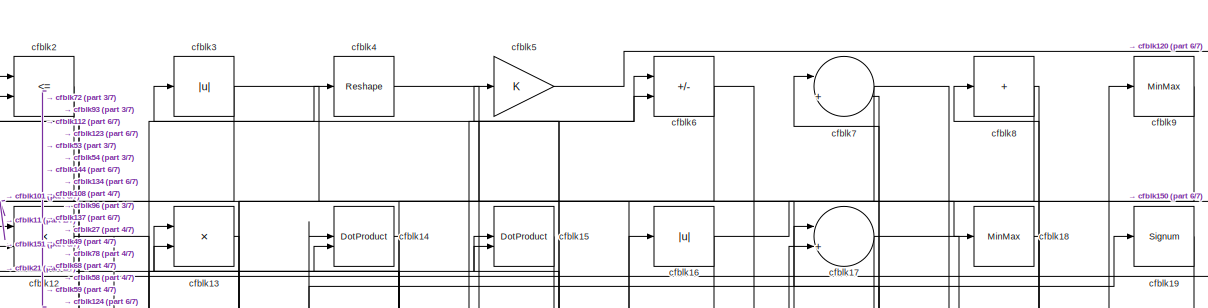
[diagram: root canvas - part 1/7, full width, top band]
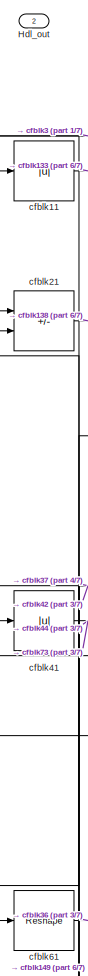
[diagram: root canvas - part 2/7, top left region]
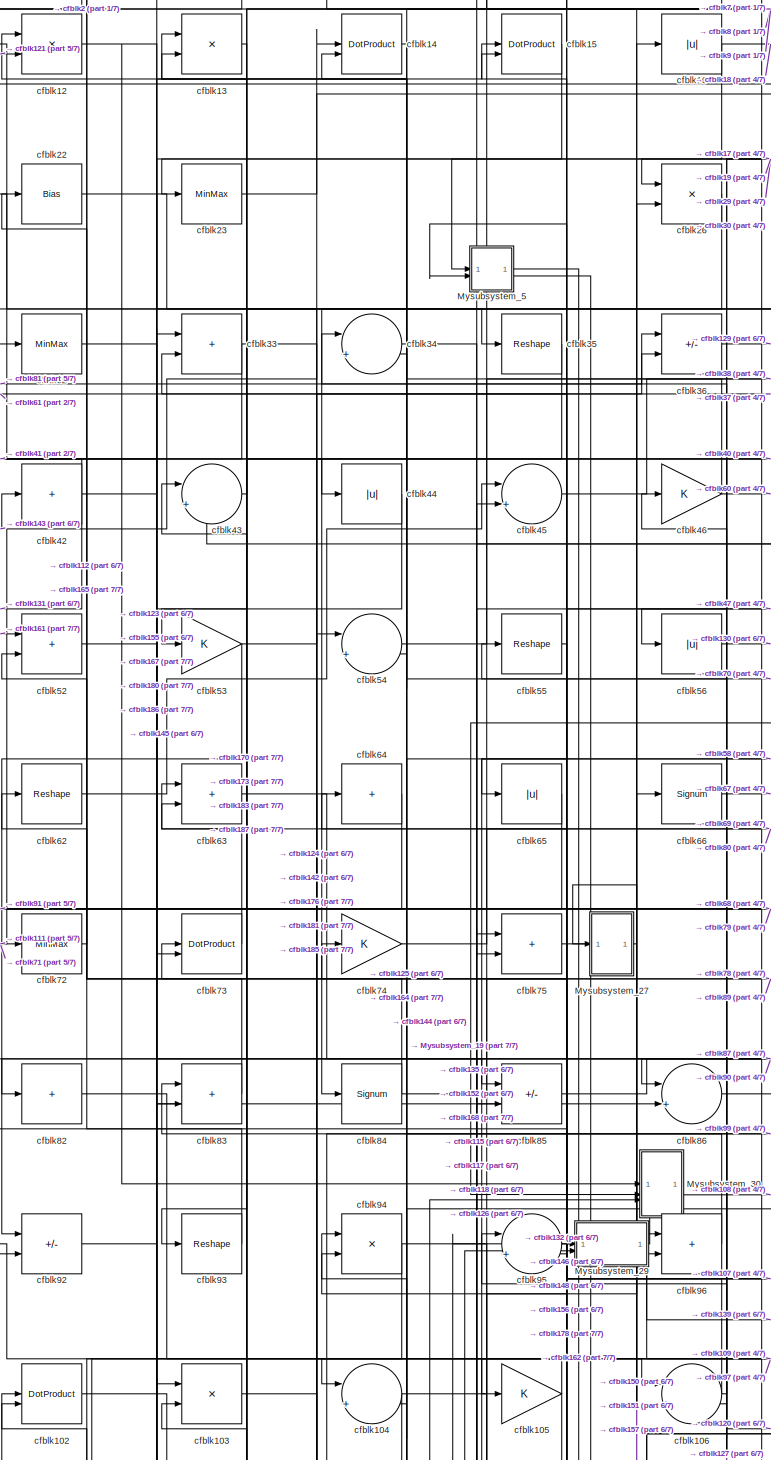
[diagram: root canvas - part 3/7, top center region]
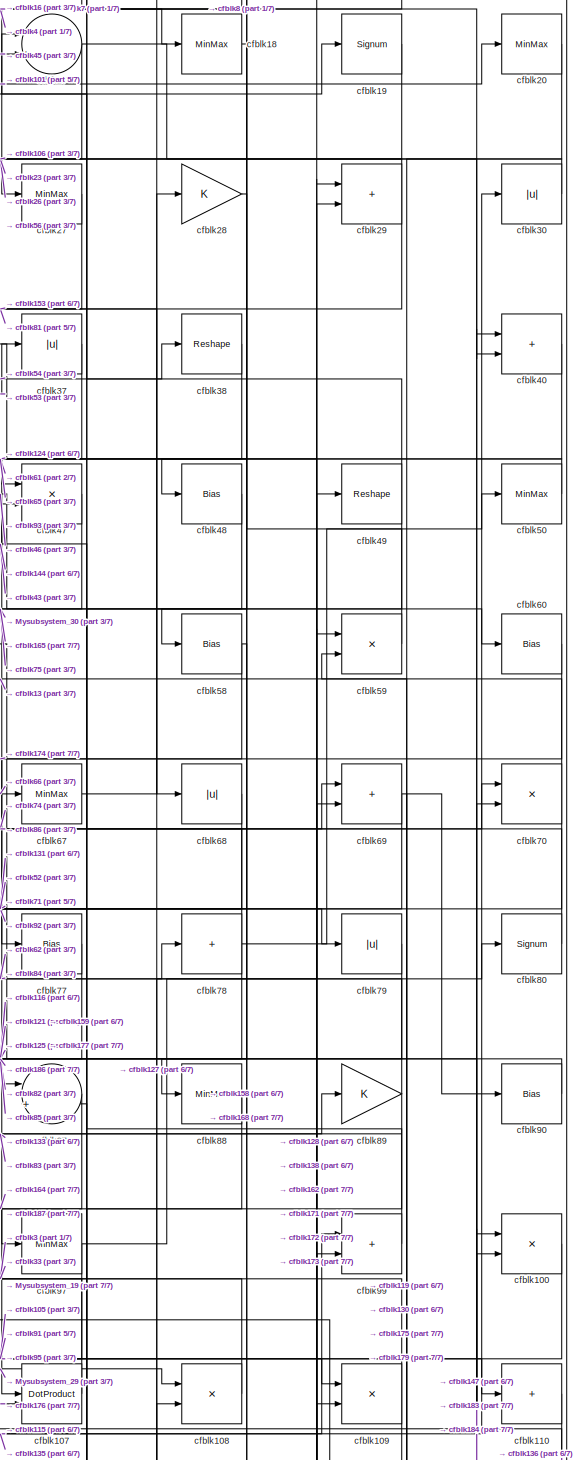
[diagram: root canvas - part 4/7, top right region]
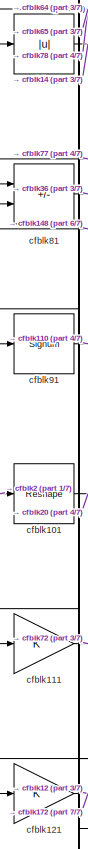
[diagram: root canvas - part 5/7, middle left region]
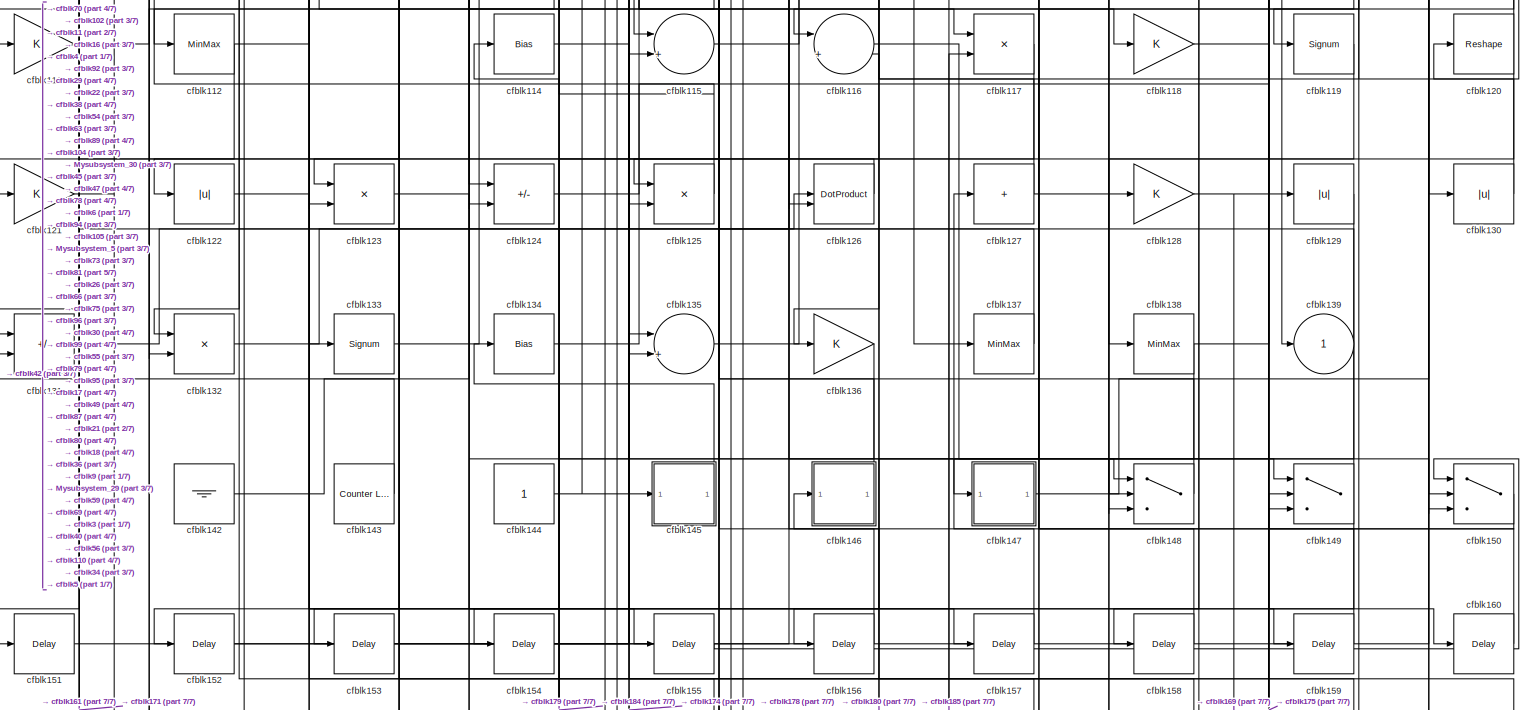
[diagram: root canvas - part 6/7, full width, bottom band]
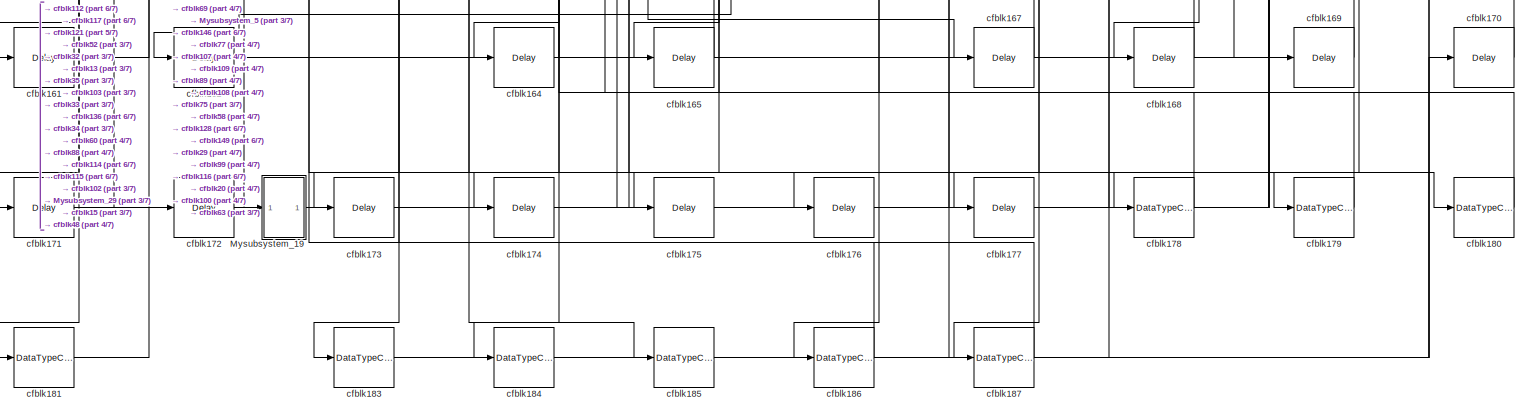
[diagram: root canvas - part 7/7, full width, bottom band]
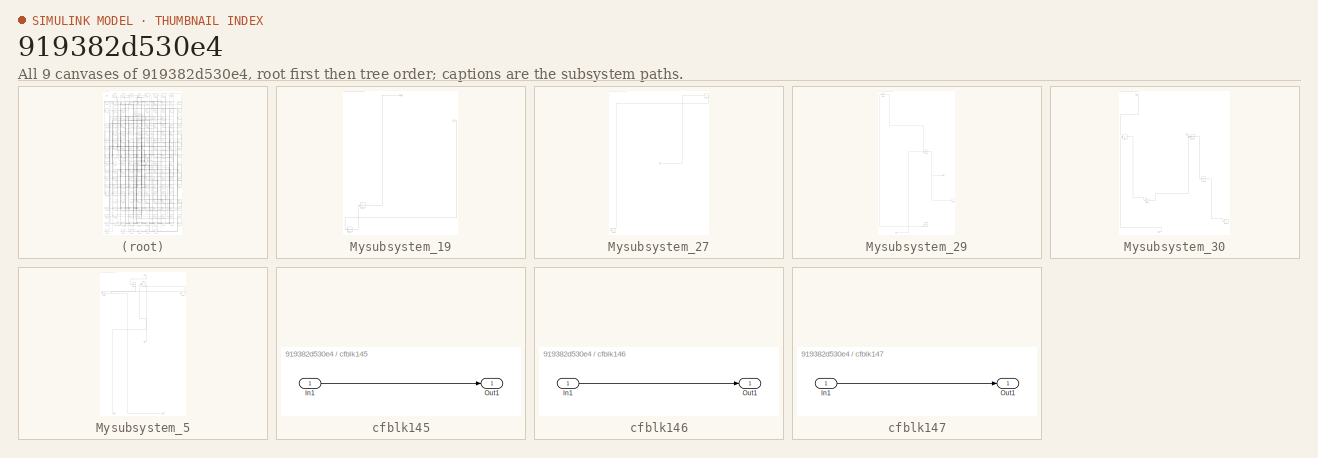
[diagram: thumbnail index - all 9 canvases of the model, root first then tree order]
MODEL slx_919382d530e4
KIND model
CONFIG AbsTol = auto
CONFIG EnableMultiTasking = off
CONFIG FixedStep = auto
CONFIG MaxStep = auto
CONFIG MinStep = auto
CONFIG RelTol = 1e-3
CONFIG SampleTimeConstraint = Unconstrained
CONFIG SolverName = VariableStepAuto
CONFIG StartTime = 0.0
CONFIG StopTime = 10.0
BLOCK [Outport] Hdl_out
  OutDataTypeStr = uint8
  Port = 2
BLOCK [SubSystem] Mysubsystem_19
  RTWFcnName = Mysubsystem_19
  RTWFcnNameOpts = User specified
  RTWFileNameOpts = Use function name
  RTWSystemCode = Reusable function
  TreatAsAtomicUnit = on
BLOCK [Inport] Mysubsystem_19/In1
BLOCK [Outport] Mysubsystem_19/Out1
BLOCK [Delay] Mysubsystem_19/cfblk163
  InputPortMap = u0
  SampleTime = 1
BLOCK [DataTypeConversion] Mysubsystem_19/cfblk182
  OutDataTypeStr = uint8
  RndMeth = Floor
  SaturateOnIntegerOverflow = off
BLOCK [SubSystem] Mysubsystem_27
  RTWFcnName = Mysubsystem_27
  RTWFcnNameOpts = User specified
  RTWFileNameOpts = Use function name
  RTWSystemCode = Reusable function
  TreatAsAtomicUnit = on
BLOCK [Inport] Mysubsystem_27/In1
BLOCK [Sum] Mysubsystem_27/cfblk10
  IconShape = rectangular
  Inputs = +
BLOCK [Scope] Mysubsystem_27/cfblk141
  Floating = off
  NumInputPorts = 1
  ScopeSpecificationString = Simulink.scopes.TimeScopeBlockCfg('CurrentConfiguration', extmgr.ConfigurationSet(extmgr.Configuration('Core','General UI',true),extmgr.Configuration('Core','Source UI',true),extmgr.Configuration('Sources','WiredSimulink',true,'DataLoggingVariableName','ScopeData2','DataLoggingSaveFormat','Array','DataLoggingLimitDataPoints',true,'DataLoggingDecimation','1'),extmgr.Configuration('Visuals','Time Do...<+868ch>
BLOCK [SubSystem] Mysubsystem_29
  RTWFcnName = Mysubsystem_29
  RTWFcnNameOpts = User specified
  RTWFileNameOpts = Use function name
  RTWSystemCode = Reusable function
  TreatAsAtomicUnit = on
BLOCK [Inport] Mysubsystem_29/In1
BLOCK [Inport] Mysubsystem_29/In2
  Port = 2
BLOCK [Outport] Mysubsystem_29/Out1
BLOCK [Reference] Mysubsystem_29/cfblk1  REF=simulink/Logic and Bit
Operations/Bit Clear
  LibrarySourceBlock = hdlsllib/Logic and Bit\nOperations/Bit Clear
  SourceBlock = simulink/Logic and Bit\nOperations/Bit Clear
  SourceType = Bit Clear
BLOCK [Outport] Mysubsystem_29/cfblk139
  Port = 2
  VectorParamsAs1DForOutWhenUnconnected = off
BLOCK [Delay] Mysubsystem_29/cfblk166
  InputPortMap = u0
  SampleTime = 1
BLOCK [DotProduct] Mysubsystem_29/cfblk76
  OutDataTypeStr = Inherit: Inherit via internal rule
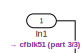
[diagram: Mysubsystem_30 - part 1/3, top left region]
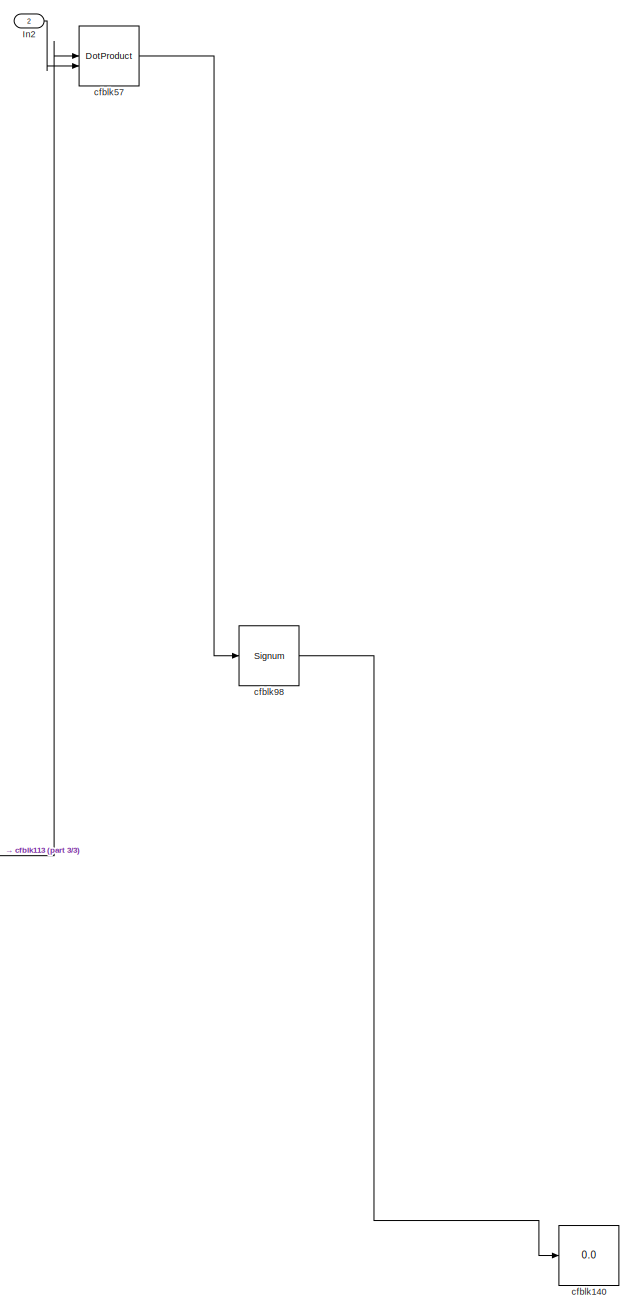
[diagram: Mysubsystem_30 - part 2/3, middle right region]
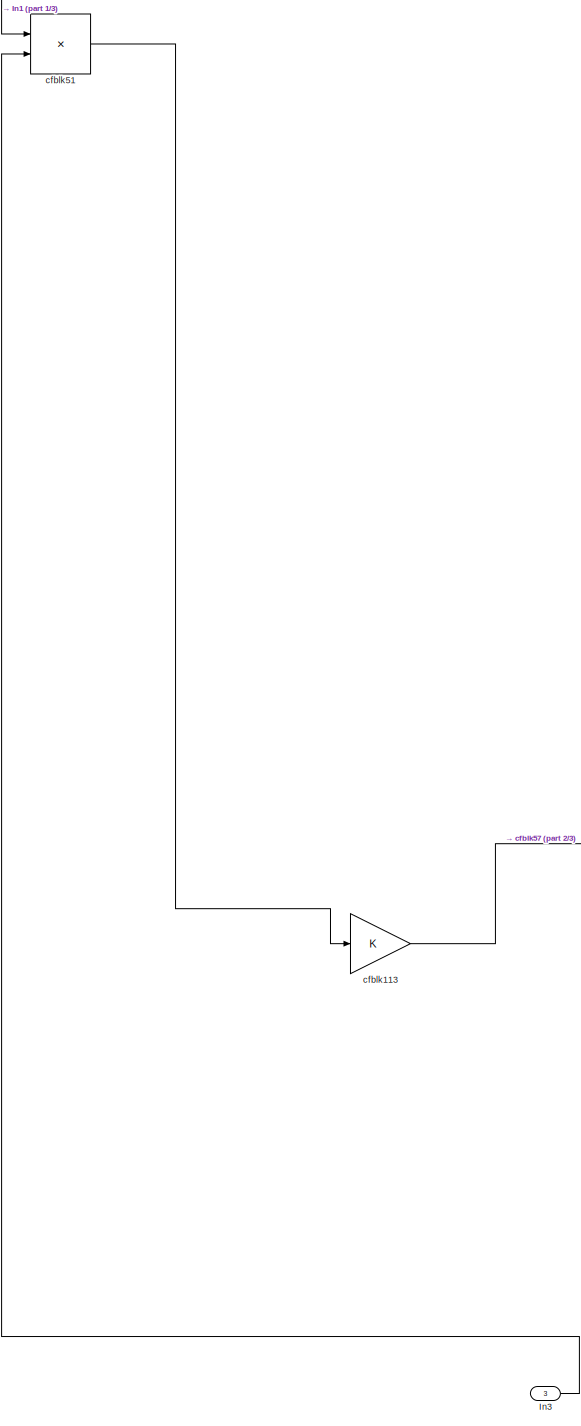
[diagram: Mysubsystem_30 - part 3/3, middle left region]
BLOCK [SubSystem] Mysubsystem_30
  RTWFcnName = Mysubsystem_30
  RTWFcnNameOpts = User specified
  RTWFileNameOpts = Use function name
  RTWSystemCode = Reusable function
  TreatAsAtomicUnit = on
BLOCK [Inport] Mysubsystem_30/In1
BLOCK [Inport] Mysubsystem_30/In2
  Port = 2
BLOCK [Inport] Mysubsystem_30/In3
  Port = 3
BLOCK [Gain] Mysubsystem_30/cfblk113
BLOCK [Display] Mysubsystem_30/cfblk140
  Decimation = 1
BLOCK [Product] Mysubsystem_30/cfblk51
  Inputs = */
  RndMeth = Zero
  SaturateOnIntegerOverflow = on
BLOCK [DotProduct] Mysubsystem_30/cfblk57
  OutDataTypeStr = Inherit: Inherit via internal rule
BLOCK [Signum] Mysubsystem_30/cfblk98
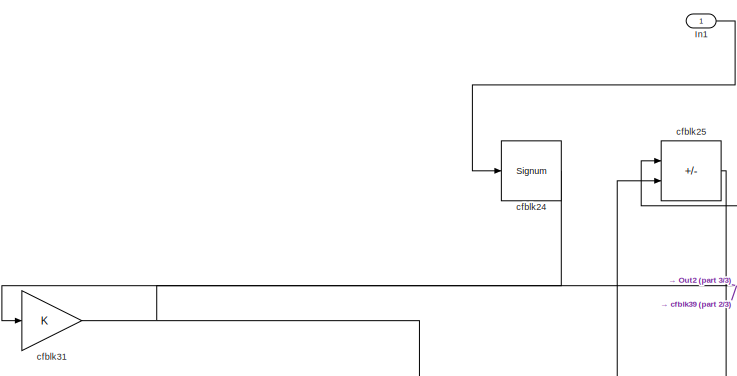
[diagram: Mysubsystem_5 - part 1/3, top left region]
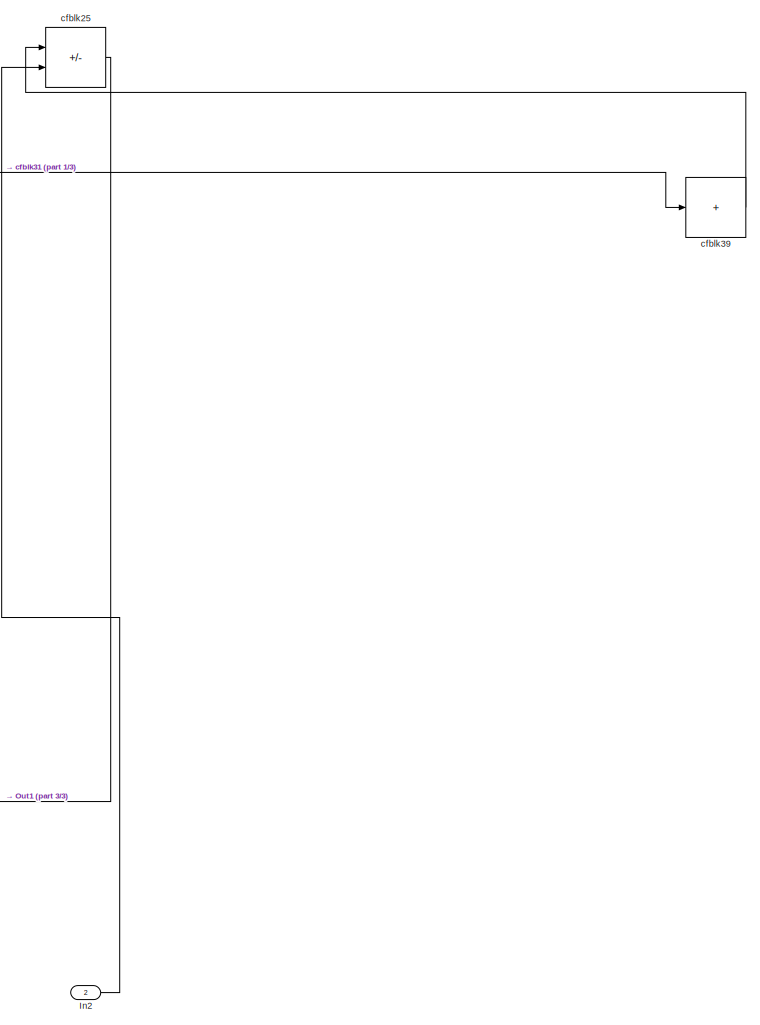
[diagram: Mysubsystem_5 - part 2/3, top right region]
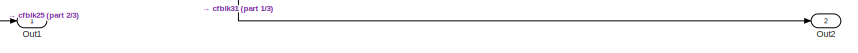
[diagram: Mysubsystem_5 - part 3/3, bottom center region]
BLOCK [SubSystem] Mysubsystem_5
  RTWFcnName = Mysubsystem_5
  RTWFcnNameOpts = User specified
  RTWFileNameOpts = Use function name
  RTWSystemCode = Reusable function
  TreatAsAtomicUnit = on
BLOCK [Inport] Mysubsystem_5/In1
BLOCK [Inport] Mysubsystem_5/In2
  Port = 2
BLOCK [Outport] Mysubsystem_5/Out1
BLOCK [Outport] Mysubsystem_5/Out2
  Port = 2
BLOCK [Signum] Mysubsystem_5/cfblk24
BLOCK [Sum] Mysubsystem_5/cfblk25
  IconShape = rectangular
  Inputs = +-
BLOCK [Gain] Mysubsystem_5/cfblk31
BLOCK [Sum] Mysubsystem_5/cfblk39
  IconShape = rectangular
  Inputs = +
BLOCK [Product] cfblk100
  Inputs = */
  OutDataTypeStr = uint8
  RndMeth = Zero
  SaturateOnIntegerOverflow = on
BLOCK [Reshape] cfblk101
BLOCK [DotProduct] cfblk102
  OutDataTypeStr = uint8
BLOCK [Product] cfblk103
  Inputs = */
  OutDataTypeStr = uint8
  RndMeth = Zero
  SaturateOnIntegerOverflow = on
BLOCK [Sum] cfblk104
  Inputs = |++
  OutDataTypeStr = uint8
BLOCK [Gain] cfblk105
  OutDataTypeStr = uint8
BLOCK [Sum] cfblk106
  Inputs = |++
  OutDataTypeStr = uint8
BLOCK [DotProduct] cfblk107
  OutDataTypeStr = uint8
BLOCK [Product] cfblk108
  Inputs = */
  OutDataTypeStr = uint8
  RndMeth = Zero
  SaturateOnIntegerOverflow = on
BLOCK [Product] cfblk109
  Inputs = */
  OutDataTypeStr = uint8
  RndMeth = Zero
  SaturateOnIntegerOverflow = on
BLOCK [Abs] cfblk11
  OutDataTypeStr = uint8
  SaturateOnIntegerOverflow = off
BLOCK [Sum] cfblk110
  IconShape = rectangular
  Inputs = +
  OutDataTypeStr = uint8
BLOCK [Gain] cfblk111
  OutDataTypeStr = uint8
BLOCK [MinMax] cfblk112
  OutDataTypeStr = uint8
BLOCK [Bias] cfblk114
  Bias = 0.0
  SaturateOnIntegerOverflow = off
BLOCK [Sum] cfblk115
  Inputs = |++
  OutDataTypeStr = uint8
BLOCK [Sum] cfblk116
  Inputs = |++
  OutDataTypeStr = uint8
BLOCK [Product] cfblk117
  Inputs = */
  OutDataTypeStr = uint8
  RndMeth = Zero
  SaturateOnIntegerOverflow = on
BLOCK [Gain] cfblk118
  OutDataTypeStr = uint8
BLOCK [Signum] cfblk119
BLOCK [Product] cfblk12
  Inputs = */
  OutDataTypeStr = uint8
  RndMeth = Zero
  SaturateOnIntegerOverflow = on
BLOCK [Reshape] cfblk120
BLOCK [Gain] cfblk121
  OutDataTypeStr = uint8
BLOCK [Abs] cfblk122
  OutDataTypeStr = uint8
  SaturateOnIntegerOverflow = off
BLOCK [Product] cfblk123
  Inputs = */
  OutDataTypeStr = uint8
  RndMeth = Zero
  SaturateOnIntegerOverflow = on
BLOCK [Sum] cfblk124
  IconShape = rectangular
  Inputs = +-
  OutDataTypeStr = uint8
BLOCK [Product] cfblk125
  Inputs = */
  OutDataTypeStr = uint8
  RndMeth = Zero
  SaturateOnIntegerOverflow = on
BLOCK [DotProduct] cfblk126
  OutDataTypeStr = uint8
BLOCK [Sum] cfblk127
  IconShape = rectangular
  Inputs = +
  OutDataTypeStr = uint8
BLOCK [Gain] cfblk128
  OutDataTypeStr = uint8
BLOCK [Abs] cfblk129
  OutDataTypeStr = uint8
  SaturateOnIntegerOverflow = off
BLOCK [Product] cfblk13
  Inputs = */
  OutDataTypeStr = uint8
  RndMeth = Zero
  SaturateOnIntegerOverflow = on
BLOCK [Abs] cfblk130
  OutDataTypeStr = uint8
  SaturateOnIntegerOverflow = off
BLOCK [Sum] cfblk131
  IconShape = rectangular
  Inputs = +-
  OutDataTypeStr = uint8
BLOCK [Product] cfblk132
  Inputs = */
  OutDataTypeStr = uint8
  RndMeth = Zero
  SaturateOnIntegerOverflow = on
BLOCK [Signum] cfblk133
BLOCK [Bias] cfblk134
  Bias = 0.0
  SaturateOnIntegerOverflow = off
BLOCK [Sum] cfblk135
  Inputs = |++
  OutDataTypeStr = uint8
BLOCK [Gain] cfblk136
  OutDataTypeStr = uint8
BLOCK [MinMax] cfblk137
  OutDataTypeStr = uint8
BLOCK [MinMax] cfblk138
  OutDataTypeStr = uint8
BLOCK [Outport] cfblk139
  OutDataTypeStr = uint8
  VectorParamsAs1DForOutWhenUnconnected = off
BLOCK [DotProduct] cfblk14
  OutDataTypeStr = uint8
BLOCK [Ground] cfblk142
BLOCK [Reference] cfblk143  REF=hdlsllib/Sources/Counter
Limited
  SourceBlock = hdlsllib/Sources/Counter\nLimited
  SourceType = Counter Limited
BLOCK [Constant] cfblk144
  OutDataTypeStr = uint8
  SampleTime = -1
BLOCK [SubSystem] cfblk145
  LibrarySourceBlock = hdlsllib/Ports &\nSubsystems/Subsystem
BLOCK [Inport] cfblk145/In1
BLOCK [Outport] cfblk145/Out1
BLOCK [SubSystem] cfblk146
  LibrarySourceBlock = hdlsllib/Ports &\nSubsystems/Subsystem
BLOCK [Inport] cfblk146/In1
BLOCK [Outport] cfblk146/Out1
BLOCK [SubSystem] cfblk147
  LibrarySourceBlock = hdlsllib/Ports &\nSubsystems/Subsystem
BLOCK [Inport] cfblk147/In1
BLOCK [Outport] cfblk147/Out1
BLOCK [Switch] cfblk148
  InputSameDT = off
  OutDataTypeStr = uint8
  SaturateOnIntegerOverflow = off
BLOCK [Switch] cfblk149
  InputSameDT = off
  OutDataTypeStr = uint8
  SaturateOnIntegerOverflow = off
BLOCK [DotProduct] cfblk15
  OutDataTypeStr = uint8
BLOCK [Switch] cfblk150
  InputSameDT = off
  OutDataTypeStr = uint8
  SaturateOnIntegerOverflow = off
BLOCK [Delay] cfblk151
  InputPortMap = u0
  SampleTime = 1
BLOCK [Delay] cfblk152
  InputPortMap = u0
  SampleTime = 1
BLOCK [Delay] cfblk153
  InputPortMap = u0
  SampleTime = 1
BLOCK [Delay] cfblk154
  InputPortMap = u0
  SampleTime = 1
BLOCK [Delay] cfblk155
  InputPortMap = u0
  SampleTime = 1
BLOCK [Delay] cfblk156
  InputPortMap = u0
  SampleTime = 1
BLOCK [Delay] cfblk157
  InputPortMap = u0
  SampleTime = 1
BLOCK [Delay] cfblk158
  InputPortMap = u0
  SampleTime = 1
BLOCK [Delay] cfblk159
  InputPortMap = u0
  SampleTime = 1
BLOCK [Abs] cfblk16
  OutDataTypeStr = uint8
  SaturateOnIntegerOverflow = off
BLOCK [Delay] cfblk160
  InputPortMap = u0
  SampleTime = 1
BLOCK [Delay] cfblk161
  InputPortMap = u0
  SampleTime = 1
BLOCK [Delay] cfblk162
  InputPortMap = u0
  SampleTime = 1
BLOCK [Delay] cfblk164
  InputPortMap = u0
  SampleTime = 1
BLOCK [Delay] cfblk165
  InputPortMap = u0
  SampleTime = 1
BLOCK [Delay] cfblk167
  InputPortMap = u0
  SampleTime = 1
BLOCK [Delay] cfblk168
  InputPortMap = u0
  SampleTime = 1
BLOCK [Delay] cfblk169
  InputPortMap = u0
  SampleTime = 1
BLOCK [Sum] cfblk17
  Inputs = |++
  OutDataTypeStr = uint8
BLOCK [Delay] cfblk170
  InputPortMap = u0
  SampleTime = 1
BLOCK [Delay] cfblk171
  InputPortMap = u0
  SampleTime = 1
BLOCK [Delay] cfblk172
  InputPortMap = u0
  SampleTime = 1
BLOCK [Delay] cfblk173
  InputPortMap = u0
  SampleTime = 1
BLOCK [Delay] cfblk174
  InputPortMap = u0
  SampleTime = 1
BLOCK [Delay] cfblk175
  InputPortMap = u0
  SampleTime = 1
BLOCK [Delay] cfblk176
  InputPortMap = u0
  SampleTime = 1
BLOCK [Delay] cfblk177
  InputPortMap = u0
  SampleTime = 1
BLOCK [DataTypeConversion] cfblk178
  OutDataTypeStr = uint8
  RndMeth = Floor
  SaturateOnIntegerOverflow = off
BLOCK [DataTypeConversion] cfblk179
  OutDataTypeStr = uint8
  RndMeth = Floor
  SaturateOnIntegerOverflow = off
BLOCK [MinMax] cfblk18
  OutDataTypeStr = uint8
BLOCK [DataTypeConversion] cfblk180
  OutDataTypeStr = uint8
  RndMeth = Floor
  SaturateOnIntegerOverflow = off
BLOCK [DataTypeConversion] cfblk181
  OutDataTypeStr = uint8
  RndMeth = Floor
  SaturateOnIntegerOverflow = off
BLOCK [DataTypeConversion] cfblk183
  OutDataTypeStr = uint8
  RndMeth = Floor
  SaturateOnIntegerOverflow = off
BLOCK [DataTypeConversion] cfblk184
  OutDataTypeStr = uint8
  RndMeth = Floor
  SaturateOnIntegerOverflow = off
BLOCK [DataTypeConversion] cfblk185
  OutDataTypeStr = uint8
  RndMeth = Floor
  SaturateOnIntegerOverflow = off
BLOCK [DataTypeConversion] cfblk186
  OutDataTypeStr = uint8
  RndMeth = Floor
  SaturateOnIntegerOverflow = off
BLOCK [DataTypeConversion] cfblk187
  OutDataTypeStr = uint8
  RndMeth = Floor
  SaturateOnIntegerOverflow = off
BLOCK [Signum] cfblk19
BLOCK [RelationalOperator] cfblk2
  InputSameDT = off
  Operator = <=
  OutDataTypeStr = boolean
BLOCK [MinMax] cfblk20
  OutDataTypeStr = uint8
BLOCK [Sum] cfblk21
  IconShape = rectangular
  Inputs = +-
  OutDataTypeStr = uint8
BLOCK [Bias] cfblk22
  Bias = 0.0
  SaturateOnIntegerOverflow = off
BLOCK [MinMax] cfblk23
  OutDataTypeStr = uint8
BLOCK [Product] cfblk26
  Inputs = */
  OutDataTypeStr = uint8
  RndMeth = Zero
  SaturateOnIntegerOverflow = on
BLOCK [MinMax] cfblk27
  OutDataTypeStr = uint8
BLOCK [Gain] cfblk28
  OutDataTypeStr = uint8
BLOCK [Sum] cfblk29
  IconShape = rectangular
  OutDataTypeStr = uint8
BLOCK [Abs] cfblk3
  OutDataTypeStr = uint8
  SaturateOnIntegerOverflow = off
BLOCK [Abs] cfblk30
  OutDataTypeStr = uint8
  SaturateOnIntegerOverflow = off
BLOCK [MinMax] cfblk32
  OutDataTypeStr = uint8
BLOCK [Sum] cfblk33
  IconShape = rectangular
  OutDataTypeStr = uint8
BLOCK [Sum] cfblk34
  Inputs = |++
  OutDataTypeStr = uint8
BLOCK [Reshape] cfblk35
BLOCK [Sum] cfblk36
  IconShape = rectangular
  Inputs = +-
  OutDataTypeStr = uint8
BLOCK [Abs] cfblk37
  OutDataTypeStr = uint8
  SaturateOnIntegerOverflow = off
BLOCK [Reshape] cfblk38
BLOCK [Reshape] cfblk4
BLOCK [Sum] cfblk40
  IconShape = rectangular
  OutDataTypeStr = uint8
BLOCK [Abs] cfblk41
  OutDataTypeStr = uint8
  SaturateOnIntegerOverflow = off
BLOCK [Sum] cfblk42
  IconShape = rectangular
  Inputs = +
  OutDataTypeStr = uint8
BLOCK [Sum] cfblk43
  Inputs = |++
  OutDataTypeStr = uint8
BLOCK [Abs] cfblk44
  OutDataTypeStr = uint8
  SaturateOnIntegerOverflow = off
BLOCK [Sum] cfblk45
  Inputs = |++
  OutDataTypeStr = uint8
BLOCK [Gain] cfblk46
  OutDataTypeStr = uint8
BLOCK [Product] cfblk47
  Inputs = */
  OutDataTypeStr = uint8
  RndMeth = Zero
  SaturateOnIntegerOverflow = on
BLOCK [Bias] cfblk48
  Bias = 0.0
  SaturateOnIntegerOverflow = off
BLOCK [Reshape] cfblk49
BLOCK [Gain] cfblk5
  OutDataTypeStr = uint8
BLOCK [MinMax] cfblk50
  OutDataTypeStr = uint8
BLOCK [Sum] cfblk52
  IconShape = rectangular
  OutDataTypeStr = uint8
BLOCK [Gain] cfblk53
  OutDataTypeStr = uint8
BLOCK [Sum] cfblk54
  Inputs = |++
  OutDataTypeStr = uint8
BLOCK [Reshape] cfblk55
BLOCK [Abs] cfblk56
  OutDataTypeStr = uint8
  SaturateOnIntegerOverflow = off
BLOCK [Bias] cfblk58
  Bias = 0.0
  SaturateOnIntegerOverflow = off
BLOCK [Product] cfblk59
  Inputs = */
  OutDataTypeStr = uint8
  RndMeth = Zero
  SaturateOnIntegerOverflow = on
BLOCK [Sum] cfblk6
  IconShape = rectangular
  Inputs = +-
  OutDataTypeStr = uint8
BLOCK [Bias] cfblk60
  Bias = 0.0
  SaturateOnIntegerOverflow = off
BLOCK [Reshape] cfblk61
BLOCK [Reshape] cfblk62
BLOCK [Sum] cfblk63
  IconShape = rectangular
  OutDataTypeStr = uint8
BLOCK [Sum] cfblk64
  IconShape = rectangular
  Inputs = +
  OutDataTypeStr = uint8
BLOCK [Abs] cfblk65
  OutDataTypeStr = uint8
  SaturateOnIntegerOverflow = off
BLOCK [Signum] cfblk66
BLOCK [MinMax] cfblk67
  OutDataTypeStr = uint8
BLOCK [Abs] cfblk68
  OutDataTypeStr = uint8
  SaturateOnIntegerOverflow = off
BLOCK [Sum] cfblk69
  IconShape = rectangular
  OutDataTypeStr = uint8
BLOCK [Sum] cfblk7
  Inputs = |++
  OutDataTypeStr = uint8
BLOCK [Product] cfblk70
  Inputs = */
  OutDataTypeStr = uint8
  RndMeth = Zero
  SaturateOnIntegerOverflow = on
BLOCK [Abs] cfblk71
  OutDataTypeStr = uint8
  SaturateOnIntegerOverflow = off
BLOCK [MinMax] cfblk72
  OutDataTypeStr = uint8
BLOCK [DotProduct] cfblk73
  OutDataTypeStr = uint8
BLOCK [Gain] cfblk74
  OutDataTypeStr = uint8
BLOCK [Sum] cfblk75
  IconShape = rectangular
  OutDataTypeStr = uint8
BLOCK [Bias] cfblk77
  Bias = 0.0
  SaturateOnIntegerOverflow = off
BLOCK [Sum] cfblk78
  IconShape = rectangular
  Inputs = +
  OutDataTypeStr = uint8
BLOCK [Abs] cfblk79
  OutDataTypeStr = uint8
  SaturateOnIntegerOverflow = off
BLOCK [Sum] cfblk8
  IconShape = rectangular
  Inputs = +
  OutDataTypeStr = uint8
BLOCK [Signum] cfblk80
BLOCK [Sum] cfblk81
  IconShape = rectangular
  Inputs = +-
  OutDataTypeStr = uint8
BLOCK [Sum] cfblk82
  IconShape = rectangular
  Inputs = +
  OutDataTypeStr = uint8
BLOCK [Sum] cfblk83
  IconShape = rectangular
  OutDataTypeStr = uint8
BLOCK [Signum] cfblk84
BLOCK [Sum] cfblk85
  IconShape = rectangular
  Inputs = +-
  OutDataTypeStr = uint8
BLOCK [Sum] cfblk86
  Inputs = |++
  OutDataTypeStr = uint8
BLOCK [Sum] cfblk87
  Inputs = |++
  OutDataTypeStr = uint8
BLOCK [MinMax] cfblk88
  OutDataTypeStr = uint8
BLOCK [Gain] cfblk89
  OutDataTypeStr = uint8
BLOCK [MinMax] cfblk9
  OutDataTypeStr = uint8
BLOCK [Bias] cfblk90
  Bias = 0.0
  SaturateOnIntegerOverflow = off
BLOCK [Signum] cfblk91
BLOCK [Sum] cfblk92
  IconShape = rectangular
  Inputs = +-
  OutDataTypeStr = uint8
BLOCK [Reshape] cfblk93
BLOCK [Product] cfblk94
  Inputs = */
  OutDataTypeStr = uint8
  RndMeth = Zero
  SaturateOnIntegerOverflow = on
BLOCK [Sum] cfblk95
  Inputs = |++
  OutDataTypeStr = uint8
BLOCK [Sum] cfblk96
  IconShape = rectangular
  OutDataTypeStr = uint8
BLOCK [MinMax] cfblk97
  OutDataTypeStr = uint8
BLOCK [Sum] cfblk99
  IconShape = rectangular
  OutDataTypeStr = uint8
LINE Mysubsystem_19/In1:1 -> Mysubsystem_19/cfblk182:1
LINE Mysubsystem_19/cfblk163:1 -> Mysubsystem_19/Out1:1
LINE Mysubsystem_19/cfblk182:1 -> Mysubsystem_19/cfblk163:1
LINE Mysubsystem_19:1 -> Mysubsystem_29:2
LINE Mysubsystem_27/In1:1 -> Mysubsystem_27/cfblk10:1
LINE Mysubsystem_27/cfblk10:1 -> Mysubsystem_27/cfblk141:1
LINE Mysubsystem_29/In1:1 -> Mysubsystem_29/cfblk166:1
LINE Mysubsystem_29/In2:1 -> Mysubsystem_29/cfblk76:1
LINE Mysubsystem_29/cfblk166:1 -> Mysubsystem_29/cfblk1:1
LINE Mysubsystem_29/cfblk1:1 -> Mysubsystem_29/cfblk76:2
NET Mysubsystem_29/cfblk76:1 -> Mysubsystem_29/Out1:1, Mysubsystem_29/cfblk139:1
LINE Mysubsystem_29:1 -> cfblk108:1
LINE Mysubsystem_29:2 -> cfblk139:1
LINE Mysubsystem_30/In1:1 -> Mysubsystem_30/cfblk51:1
LINE Mysubsystem_30/In2:1 -> Mysubsystem_30/cfblk57:2
LINE Mysubsystem_30/In3:1 -> Mysubsystem_30/cfblk51:2
LINE Mysubsystem_30/cfblk113:1 -> Mysubsystem_30/cfblk57:1
LINE Mysubsystem_30/cfblk51:1 -> Mysubsystem_30/cfblk113:1
LINE Mysubsystem_30/cfblk57:1 -> Mysubsystem_30/cfblk98:1
LINE Mysubsystem_30/cfblk98:1 -> Mysubsystem_30/cfblk140:1
LINE Mysubsystem_5/In1:1 -> Mysubsystem_5/cfblk24:1
LINE Mysubsystem_5/In2:1 -> Mysubsystem_5/cfblk25:2
LINE Mysubsystem_5/cfblk24:1 -> Mysubsystem_5/cfblk31:1
LINE Mysubsystem_5/cfblk25:1 -> Mysubsystem_5/Out1:1
NET Mysubsystem_5/cfblk31:1 -> Mysubsystem_5/Out2:1, Mysubsystem_5/cfblk39:1
LINE Mysubsystem_5/cfblk39:1 -> Mysubsystem_5/cfblk25:1
LINE Mysubsystem_5:1 -> cfblk162:1
LINE Mysubsystem_5:2 -> cfblk167:1
LINE cfblk100:1 -> Mysubsystem_19:1
LINE cfblk101:1 -> cfblk20:1
NET cfblk102:1 -> cfblk145:1, cfblk86:2
LINE cfblk103:1 -> cfblk185:1
NET cfblk104:1 -> cfblk126:2, cfblk132:1, cfblk16:1
NET cfblk105:1 -> cfblk104:1, cfblk132:2
NET cfblk106:1 -> cfblk46:1, cfblk64:1
LINE cfblk107:1 -> cfblk33:2
LINE cfblk108:1 -> cfblk3:1
NET cfblk109:1 -> cfblk187:1, cfblk74:1
LINE cfblk110:1 -> cfblk136:1
LINE cfblk111:1 -> cfblk72:1
NET cfblk112:1 -> cfblk161:1, cfblk4:1
LINE cfblk114:1 -> cfblk178:1
LINE cfblk115:1 -> cfblk30:1
LINE cfblk116:1 -> cfblk149:1
LINE cfblk117:1 -> cfblk171:1
LINE cfblk118:1 -> cfblk160:1
LINE cfblk119:1 -> cfblk154:1
LINE cfblk11:1 -> cfblk133:1
NET cfblk120:1 -> cfblk148:2, cfblk34:1
NET cfblk121:1 -> cfblk12:2, cfblk172:1
LINE cfblk122:1 -> cfblk157:1
NET cfblk123:1 -> cfblk148:1, cfblk159:1
LINE cfblk124:1 -> cfblk9:1
NET cfblk125:1 -> cfblk102:1, cfblk94:2
LINE cfblk126:1 -> cfblk122:1
NET cfblk127:1 -> cfblk55:1, cfblk80:1
NET cfblk128:1 -> cfblk169:1, cfblk59:1
LINE cfblk129:1 -> cfblk156:1
NET cfblk12:1 -> Mysubsystem_30:1, cfblk35:1
NET cfblk130:1 -> cfblk59:2, cfblk95:1
LINE cfblk131:1 -> cfblk66:1
LINE cfblk132:1 -> cfblk126:1
LINE cfblk133:1 -> cfblk89:1
LINE cfblk134:1 -> cfblk6:1
LINE cfblk135:1 -> cfblk99:1
LINE cfblk136:1 -> cfblk184:1
LINE cfblk137:1 -> cfblk5:1
NET cfblk138:1 -> cfblk148:3, cfblk29:2
LINE cfblk13:1 -> cfblk183:1
LINE cfblk142:1 -> cfblk54:1
LINE cfblk143:1 -> cfblk42:1
NET cfblk144:1 -> Mysubsystem_30:3, cfblk47:2, cfblk6:2
LINE cfblk145/In1:1 -> cfblk145/Out1:1
LINE cfblk145:1 -> cfblk134:1
LINE cfblk146/In1:1 -> cfblk146/Out1:1
LINE cfblk146:1 -> cfblk73:1
LINE cfblk147/In1:1 -> cfblk147/Out1:1
LINE cfblk147:1 -> cfblk70:2
NET cfblk148:1 -> Mysubsystem_5:2, cfblk81:2, cfblk94:1
NET cfblk149:1 -> cfblk152:1, cfblk21:1
LINE cfblk14:1 -> cfblk104:2
LINE cfblk150:1 -> cfblk127:1
LINE cfblk151:1 -> cfblk26:2
LINE cfblk152:1 -> cfblk45:2
LINE cfblk153:1 -> cfblk40:1
LINE cfblk154:1 -> cfblk135:1
LINE cfblk155:1 -> cfblk150:1
LINE cfblk156:1 -> cfblk95:2
LINE cfblk157:1 -> cfblk96:1
LINE cfblk158:1 -> cfblk87:2
LINE cfblk159:1 -> cfblk17:1
LINE cfblk15:1 -> Mysubsystem_5:1
LINE cfblk160:1 -> cfblk149:2
LINE cfblk161:1 -> cfblk52:1
LINE cfblk162:1 -> cfblk99:2
LINE cfblk164:1 -> cfblk34:2
LINE cfblk165:1 -> cfblk102:2
LINE cfblk167:1 -> cfblk33:1
LINE cfblk168:1 -> cfblk75:1
LINE cfblk169:1 -> cfblk116:2
NET cfblk16:1 -> cfblk123:2, cfblk18:1
LINE cfblk170:1 -> cfblk63:2
LINE cfblk171:1 -> cfblk109:2
LINE cfblk172:1 -> cfblk29:1
LINE cfblk173:1 -> cfblk69:2
LINE cfblk174:1 -> cfblk115:2
LINE cfblk175:1 -> cfblk149:3
LINE cfblk176:1 -> cfblk107:2
LINE cfblk177:1 -> cfblk108:2
NET cfblk178:1 -> Mysubsystem_29:1, cfblk15:2
LINE cfblk179:1 -> cfblk114:1
NET cfblk17:1 -> cfblk106:2, cfblk40:2
LINE cfblk180:1 -> cfblk146:1
LINE cfblk181:1 -> cfblk32:1
LINE cfblk183:1 -> cfblk100:1
LINE cfblk184:1 -> cfblk100:2
NET cfblk185:1 -> cfblk117:2, cfblk128:1, cfblk170:1
LINE cfblk186:1 -> cfblk103:1
LINE cfblk187:1 -> cfblk103:2
LINE cfblk18:1 -> cfblk158:1
LINE cfblk19:1 -> cfblk56:1
LINE cfblk20:1 -> cfblk179:1
LINE cfblk21:1 -> cfblk138:1
NET cfblk22:1 -> cfblk124:1, cfblk85:2
LINE cfblk23:1 -> cfblk19:1
LINE cfblk26:1 -> cfblk84:1
LINE cfblk27:1 -> cfblk81:1
NET cfblk28:1 -> cfblk48:1, cfblk88:1
NET cfblk29:1 -> cfblk153:1, cfblk23:1
LINE cfblk2:1 -> cfblk101:1
LINE cfblk30:1 -> cfblk26:1
LINE cfblk32:1 -> cfblk180:1
NET cfblk33:1 -> cfblk176:1, cfblk181:1
LINE cfblk34:1 -> cfblk135:2
LINE cfblk35:1 -> cfblk173:1
LINE cfblk36:1 -> cfblk129:1
LINE cfblk37:1 -> cfblk61:1
NET cfblk38:1 -> cfblk124:2, cfblk65:1, cfblk86:1
NET cfblk3:1 -> cfblk11:1, cfblk150:2, cfblk21:2
NET cfblk40:1 -> cfblk107:1, cfblk93:1
NET cfblk41:1 -> cfblk44:1, cfblk73:2
NET cfblk42:1 -> cfblk131:2, cfblk15:1, cfblk41:1
LINE cfblk43:1 -> cfblk13:1
LINE cfblk44:1 -> cfblk83:2
LINE cfblk45:1 -> cfblk17:2
NET cfblk46:1 -> cfblk12:1, cfblk60:1
NET cfblk47:1 -> Mysubsystem_30:2, cfblk75:2
LINE cfblk48:1 -> cfblk165:1
NET cfblk49:1 -> cfblk147:1, cfblk7:1
LINE cfblk4:1 -> cfblk27:1
LINE cfblk50:1 -> cfblk47:1
LINE cfblk52:1 -> cfblk79:1
NET cfblk53:1 -> cfblk37:1, cfblk92:1
LINE cfblk54:1 -> cfblk38:1
LINE cfblk55:1 -> cfblk125:1
LINE cfblk56:1 -> cfblk130:1
NET cfblk58:1 -> cfblk168:1, cfblk85:1
LINE cfblk59:1 -> cfblk8:1
LINE cfblk5:1 -> cfblk120:1
NET cfblk60:1 -> cfblk174:1, cfblk77:1
LINE cfblk61:1 -> cfblk36:2
LINE cfblk62:1 -> cfblk45:1
NET cfblk63:1 -> cfblk115:1, cfblk117:1
LINE cfblk64:1 -> cfblk91:1
LINE cfblk65:1 -> cfblk111:1
LINE cfblk66:1 -> cfblk67:1
LINE cfblk67:1 -> cfblk28:1
LINE cfblk68:1 -> cfblk92:2
NET cfblk69:1 -> cfblk119:1, cfblk175:1, cfblk90:1
NET cfblk6:1 -> cfblk137:1, cfblk151:1
NET cfblk70:1 -> cfblk131:1, cfblk13:2
LINE cfblk71:1 -> cfblk14:1
LINE cfblk72:1 -> cfblk2:2
LINE cfblk73:1 -> cfblk63:1
LINE cfblk74:1 -> cfblk69:1
NET cfblk75:1 -> Mysubsystem_27:1, cfblk150:3
NET cfblk77:1 -> cfblk121:1, cfblk186:1
NET cfblk78:1 -> cfblk125:2, cfblk50:1, cfblk71:1, cfblk7:2
LINE cfblk79:1 -> cfblk116:1
NET cfblk7:1 -> cfblk54:2, cfblk68:1
LINE cfblk80:1 -> cfblk43:1
LINE cfblk81:1 -> cfblk36:1
LINE cfblk82:1 -> cfblk106:1
LINE cfblk83:1 -> cfblk52:2
NET cfblk84:1 -> cfblk22:1, cfblk78:1
LINE cfblk85:1 -> cfblk87:1
LINE cfblk86:1 -> cfblk70:1
LINE cfblk87:1 -> cfblk97:1
LINE cfblk88:1 -> cfblk164:1
NET cfblk89:1 -> cfblk177:1, cfblk62:1
NET cfblk8:1 -> cfblk53:1, cfblk58:1
LINE cfblk90:1 -> cfblk82:1
LINE cfblk91:1 -> cfblk110:1
LINE cfblk92:1 -> cfblk155:1
LINE cfblk93:1 -> cfblk2:1
NET cfblk94:1 -> cfblk112:1, cfblk118:1
LINE cfblk95:1 -> cfblk109:1
LINE cfblk96:1 -> cfblk14:2
NET cfblk97:1 -> cfblk105:1, cfblk49:1
NET cfblk99:1 -> cfblk43:2, cfblk83:1
NET cfblk9:1 -> cfblk123:1, cfblk96:2
note: NET lines group one-source signal fan-out (src -> all destinations, sorted); 1:1 wires keep LINE
